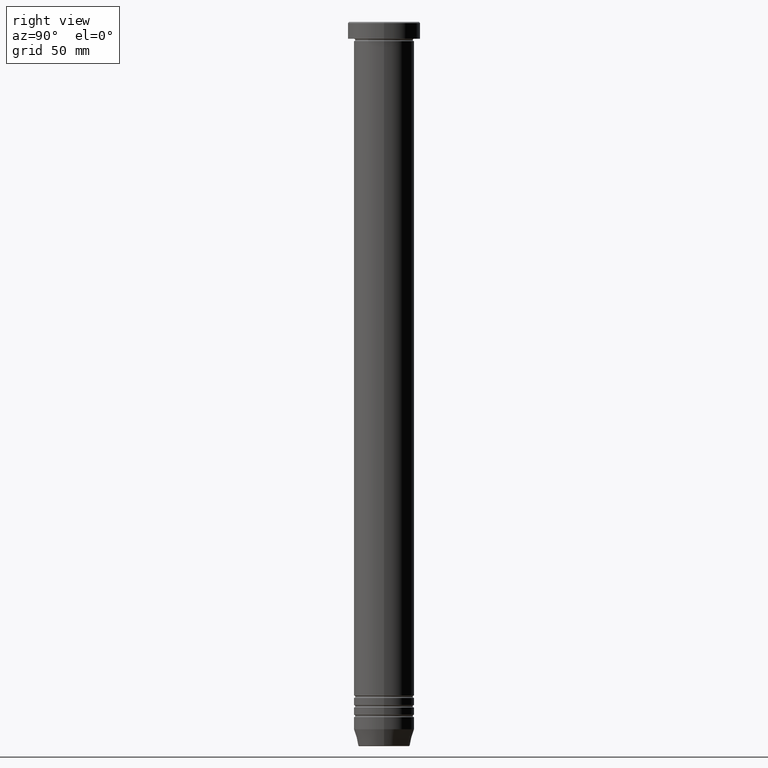
[diagram: clean part render]
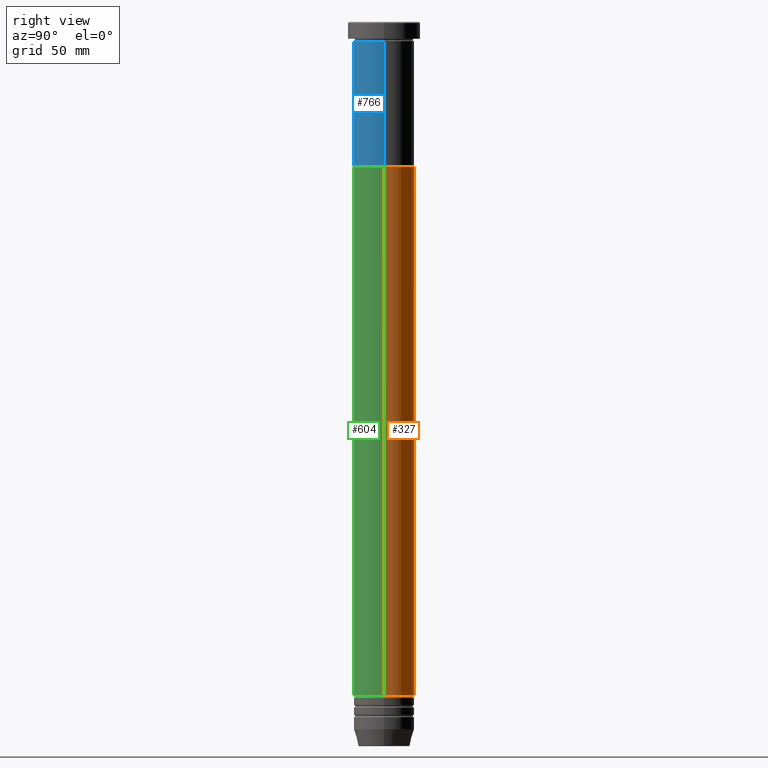
[diagram: same view with three faces highlighted in distinct colors, each labeled with its STEP entity id]
A machine part, right view with three faces highlighted in distinct colors.
Their STEP definitions:

[orange] entity #327 — the highlighted cylindrical surface (edge-blend (fillet) strip) has radius 12.5 mm, axis along (-0, -0, 1).
#28 = CARTESIAN_POINT ( 'NONE',  ( -12.49999999999999289, 1.530808498934190930E-15, -279.0000000000000000 ) ) ;
#53 = DIRECTION ( 'NONE',  ( -0.000000000000000000, -0.000000000000000000, 1.000000000000000000 ) ) ;
#58 = EDGE_CURVE ( 'NONE', #260, #81, #80, .T. ) ;
#80 = LINE ( 'NONE', #477, #179 ) ;
#81 = VERTEX_POINT ( 'NONE', #573 ) ;
#104 = CARTESIAN_POINT ( 'NONE',  ( 12.49999999999999289, 0.000000000000000000, -279.0000000000000000 ) ) ;
#122 = VECTOR ( 'NONE', #53, 1000.000000000000000 ) ;
#128 = VERTEX_POINT ( 'NONE', #399 ) ;
#142 = ORIENTED_EDGE ( 'NONE', *, *, #848, .T. ) ;
#179 = VECTOR ( 'NONE', #1056, 1000.000000000000000 ) ;
#260 = VERTEX_POINT ( 'NONE', #104 ) ;
#281 = EDGE_CURVE ( 'NONE', #81, #128, #598, .T. ) ;
#308 = ORIENTED_EDGE ( 'NONE', *, *, #332, .T. ) ;
#323 = VERTEX_POINT ( 'NONE', #28 ) ;
#327 = ADVANCED_FACE ( 'NONE', ( #666 ), #991, .T. ) ;
#332 = EDGE_CURVE ( 'NONE', #323, #128, #540, .T. ) ;
#340 = CIRCLE ( 'NONE', #859, 12.49999999999999289 ) ;
#395 = ORIENTED_EDGE ( 'NONE', *, *, #58, .F. ) ;
#399 = CARTESIAN_POINT ( 'NONE',  ( -12.50000000000000000, 1.530808498934191521E-15, -60.00000000000000000 ) ) ;
#477 = CARTESIAN_POINT ( 'NONE',  ( 12.49999999999999645, 0.000000000000000000, 0.000000000000000000 ) ) ;
#487 = ORIENTED_EDGE ( 'NONE', *, *, #281, .F. ) ;
#518 = DIRECTION ( 'NONE',  ( 1.000000000000000000, 0.000000000000000000, 0.000000000000000000 ) ) ;
#535 = DIRECTION ( 'NONE',  ( 1.000000000000000000, 0.000000000000000000, 0.000000000000000000 ) ) ;
#540 = LINE ( 'NONE', #867, #122 ) ;
#544 = CARTESIAN_POINT ( 'NONE',  ( 0.000000000000000000, 0.000000000000000000, 0.000000000000000000 ) ) ;
#573 = CARTESIAN_POINT ( 'NONE',  ( 12.50000000000000000, 0.000000000000000000, -60.00000000000000000 ) ) ;
#580 = AXIS2_PLACEMENT_3D ( 'NONE', #544, #709, #535 ) ;
#598 = CIRCLE ( 'NONE', #956, 12.50000000000000000 ) ;
#666 = FACE_OUTER_BOUND ( 'NONE', #953, .T. ) ;
#707 = CARTESIAN_POINT ( 'NONE',  ( 0.000000000000000000, 0.000000000000000000, -279.0000000000000000 ) ) ;
#709 = DIRECTION ( 'NONE',  ( -0.000000000000000000, -0.000000000000000000, 1.000000000000000000 ) ) ;
#711 = DIRECTION ( 'NONE',  ( 1.000000000000000000, 0.000000000000000000, 0.000000000000000000 ) ) ;
#767 = CARTESIAN_POINT ( 'NONE',  ( 0.000000000000000000, 0.000000000000000000, -60.00000000000000000 ) ) ;
#848 = EDGE_CURVE ( 'NONE', #260, #323, #340, .T. ) ;
#859 = AXIS2_PLACEMENT_3D ( 'NONE', #707, #1015, #711 ) ;
#867 = CARTESIAN_POINT ( 'NONE',  ( -12.49999999999999645, 1.530808498934191127E-15, 0.000000000000000000 ) ) ;
#953 = EDGE_LOOP ( 'NONE', ( #142, #308, #487, #395 ) ) ;
#956 = AXIS2_PLACEMENT_3D ( 'NONE', #767, #996, #518 ) ;
#991 = CYLINDRICAL_SURFACE ( 'NONE', #580, 12.49999999999999645 ) ;
#996 = DIRECTION ( 'NONE',  ( -0.000000000000000000, -0.000000000000000000, 1.000000000000000000 ) ) ;
#1015 = DIRECTION ( 'NONE',  ( -0.000000000000000000, -0.000000000000000000, 1.000000000000000000 ) ) ;
#1056 = DIRECTION ( 'NONE',  ( -0.000000000000000000, -0.000000000000000000, 1.000000000000000000 ) ) ;

[blue] entity #766 — the highlighted cylindrical surface (edge-blend (fillet) strip) has radius 12.5 mm, axis along (-0, -0, 1).
#33 = VERTEX_POINT ( 'NONE', #394 ) ;
#68 = AXIS2_PLACEMENT_3D ( 'NONE', #895, #409, #969 ) ;
#106 = ORIENTED_EDGE ( 'NONE', *, *, #289, .F. ) ;
#115 = CYLINDRICAL_SURFACE ( 'NONE', #337, 12.50000000000000000 ) ;
#154 = CIRCLE ( 'NONE', #632, 12.50000000000000000 ) ;
#159 = DIRECTION ( 'NONE',  ( -0.000000000000000000, -0.000000000000000000, 1.000000000000000000 ) ) ;
#168 = VERTEX_POINT ( 'NONE', #747 ) ;
#171 = CARTESIAN_POINT ( 'NONE',  ( 12.50000000000000000, 0.000000000000000000, 0.000000000000000000 ) ) ;
#189 = DIRECTION ( 'NONE',  ( 1.000000000000000000, 0.000000000000000000, 0.000000000000000000 ) ) ;
#226 = LINE ( 'NONE', #980, #706 ) ;
#273 = DIRECTION ( 'NONE',  ( -0.000000000000000000, -0.000000000000000000, 1.000000000000000000 ) ) ;
#289 = EDGE_CURVE ( 'NONE', #625, #168, #154, .T. ) ;
#337 = AXIS2_PLACEMENT_3D ( 'NONE', #995, #439, #750 ) ;
#371 = VECTOR ( 'NONE', #746, 1000.000000000000000 ) ;
#394 = CARTESIAN_POINT ( 'NONE',  ( -12.50000000000000000, 1.530808498934191521E-15, -60.00000000000000000 ) ) ;
#400 = ORIENTED_EDGE ( 'NONE', *, *, #690, .T. ) ;
#408 = CARTESIAN_POINT ( 'NONE',  ( 12.50000000000000000, 0.000000000000000000, -60.00000000000000000 ) ) ;
#409 = DIRECTION ( 'NONE',  ( -0.000000000000000000, -0.000000000000000000, 1.000000000000000000 ) ) ;
#422 = CARTESIAN_POINT ( 'NONE',  ( 0.000000000000000000, 0.000000000000000000, -8.000000000000000000 ) ) ;
#439 = DIRECTION ( 'NONE',  ( -0.000000000000000000, -0.000000000000000000, 1.000000000000000000 ) ) ;
#496 = CARTESIAN_POINT ( 'NONE',  ( -12.50000000000000000, 1.530808498934191521E-15, -8.000000000000000000 ) ) ;
#579 = EDGE_LOOP ( 'NONE', ( #691, #697, #400, #106 ) ) ;
#625 = VERTEX_POINT ( 'NONE', #496 ) ;
#628 = EDGE_CURVE ( 'NONE', #33, #984, #687, .T. ) ;
#632 = AXIS2_PLACEMENT_3D ( 'NONE', #422, #273, #189 ) ;
#687 = CIRCLE ( 'NONE', #68, 12.50000000000000000 ) ;
#690 = EDGE_CURVE ( 'NONE', #984, #168, #913, .T. ) ;
#691 = ORIENTED_EDGE ( 'NONE', *, *, #976, .F. ) ;
#697 = ORIENTED_EDGE ( 'NONE', *, *, #628, .T. ) ;
#706 = VECTOR ( 'NONE', #159, 1000.000000000000000 ) ;
#746 = DIRECTION ( 'NONE',  ( -0.000000000000000000, -0.000000000000000000, 1.000000000000000000 ) ) ;
#747 = CARTESIAN_POINT ( 'NONE',  ( 12.50000000000000000, 0.000000000000000000, -8.000000000000000000 ) ) ;
#750 = DIRECTION ( 'NONE',  ( 1.000000000000000000, 0.000000000000000000, 0.000000000000000000 ) ) ;
#766 = ADVANCED_FACE ( 'NONE', ( #849 ), #115, .T. ) ;
#849 = FACE_OUTER_BOUND ( 'NONE', #579, .T. ) ;
#895 = CARTESIAN_POINT ( 'NONE',  ( 0.000000000000000000, 0.000000000000000000, -60.00000000000000000 ) ) ;
#913 = LINE ( 'NONE', #171, #371 ) ;
#969 = DIRECTION ( 'NONE',  ( 1.000000000000000000, 0.000000000000000000, 0.000000000000000000 ) ) ;
#976 = EDGE_CURVE ( 'NONE', #33, #625, #226, .T. ) ;
#980 = CARTESIAN_POINT ( 'NONE',  ( -12.50000000000000000, 1.530808498934191521E-15, 0.000000000000000000 ) ) ;
#984 = VERTEX_POINT ( 'NONE', #408 ) ;
#995 = CARTESIAN_POINT ( 'NONE',  ( 0.000000000000000000, 0.000000000000000000, 0.000000000000000000 ) ) ;

[green] entity #604 — the highlighted cylindrical surface (edge-blend (fillet) strip) has radius 12.5 mm, axis along (-0, -0, 1).
#28 = CARTESIAN_POINT ( 'NONE',  ( -12.49999999999999289, 1.530808498934190930E-15, -279.0000000000000000 ) ) ;
#53 = DIRECTION ( 'NONE',  ( -0.000000000000000000, -0.000000000000000000, 1.000000000000000000 ) ) ;
#58 = EDGE_CURVE ( 'NONE', #260, #81, #80, .T. ) ;
#69 = FACE_OUTER_BOUND ( 'NONE', #881, .T. ) ;
#80 = LINE ( 'NONE', #477, #179 ) ;
#81 = VERTEX_POINT ( 'NONE', #573 ) ;
#104 = CARTESIAN_POINT ( 'NONE',  ( 12.49999999999999289, 0.000000000000000000, -279.0000000000000000 ) ) ;
#122 = VECTOR ( 'NONE', #53, 1000.000000000000000 ) ;
#128 = VERTEX_POINT ( 'NONE', #399 ) ;
#135 = ORIENTED_EDGE ( 'NONE', *, *, #656, .T. ) ;
#179 = VECTOR ( 'NONE', #1056, 1000.000000000000000 ) ;
#191 = ORIENTED_EDGE ( 'NONE', *, *, #58, .T. ) ;
#220 = AXIS2_PLACEMENT_3D ( 'NONE', #646, #572, #392 ) ;
#246 = DIRECTION ( 'NONE',  ( -0.000000000000000000, -0.000000000000000000, 1.000000000000000000 ) ) ;
#248 = ORIENTED_EDGE ( 'NONE', *, *, #863, .F. ) ;
#260 = VERTEX_POINT ( 'NONE', #104 ) ;
#323 = VERTEX_POINT ( 'NONE', #28 ) ;
#332 = EDGE_CURVE ( 'NONE', #323, #128, #540, .T. ) ;
#392 = DIRECTION ( 'NONE',  ( 1.000000000000000000, 0.000000000000000000, 0.000000000000000000 ) ) ;
#399 = CARTESIAN_POINT ( 'NONE',  ( -12.50000000000000000, 1.530808498934191521E-15, -60.00000000000000000 ) ) ;
#464 = CIRCLE ( 'NONE', #484, 12.50000000000000000 ) ;
#477 = CARTESIAN_POINT ( 'NONE',  ( 12.49999999999999645, 0.000000000000000000, 0.000000000000000000 ) ) ;
#484 = AXIS2_PLACEMENT_3D ( 'NONE', #529, #543, #700 ) ;
#492 = ORIENTED_EDGE ( 'NONE', *, *, #332, .F. ) ;
#529 = CARTESIAN_POINT ( 'NONE',  ( 0.000000000000000000, 0.000000000000000000, -60.00000000000000000 ) ) ;
#540 = LINE ( 'NONE', #867, #122 ) ;
#543 = DIRECTION ( 'NONE',  ( -0.000000000000000000, -0.000000000000000000, 1.000000000000000000 ) ) ;
#572 = DIRECTION ( 'NONE',  ( -0.000000000000000000, -0.000000000000000000, 1.000000000000000000 ) ) ;
#573 = CARTESIAN_POINT ( 'NONE',  ( 12.50000000000000000, 0.000000000000000000, -60.00000000000000000 ) ) ;
#577 = DIRECTION ( 'NONE',  ( 1.000000000000000000, 0.000000000000000000, 0.000000000000000000 ) ) ;
#599 = CIRCLE ( 'NONE', #824, 12.49999999999999289 ) ;
#604 = ADVANCED_FACE ( 'NONE', ( #69 ), #1059, .T. ) ;
#646 = CARTESIAN_POINT ( 'NONE',  ( 0.000000000000000000, 0.000000000000000000, 0.000000000000000000 ) ) ;
#656 = EDGE_CURVE ( 'NONE', #323, #260, #599, .T. ) ;
#700 = DIRECTION ( 'NONE',  ( 1.000000000000000000, 0.000000000000000000, 0.000000000000000000 ) ) ;
#824 = AXIS2_PLACEMENT_3D ( 'NONE', #986, #246, #577 ) ;
#863 = EDGE_CURVE ( 'NONE', #128, #81, #464, .T. ) ;
#867 = CARTESIAN_POINT ( 'NONE',  ( -12.49999999999999645, 1.530808498934191127E-15, 0.000000000000000000 ) ) ;
#881 = EDGE_LOOP ( 'NONE', ( #492, #135, #191, #248 ) ) ;
#986 = CARTESIAN_POINT ( 'NONE',  ( 0.000000000000000000, 0.000000000000000000, -279.0000000000000000 ) ) ;
#1056 = DIRECTION ( 'NONE',  ( -0.000000000000000000, -0.000000000000000000, 1.000000000000000000 ) ) ;
#1059 = CYLINDRICAL_SURFACE ( 'NONE', #220, 12.49999999999999645 ) ;